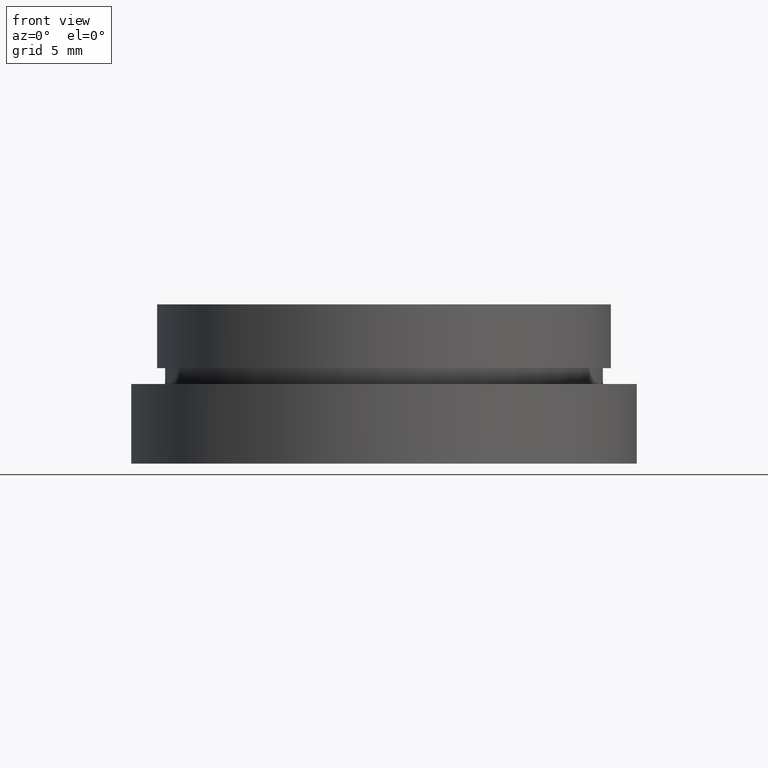
[diagram: clean part render]
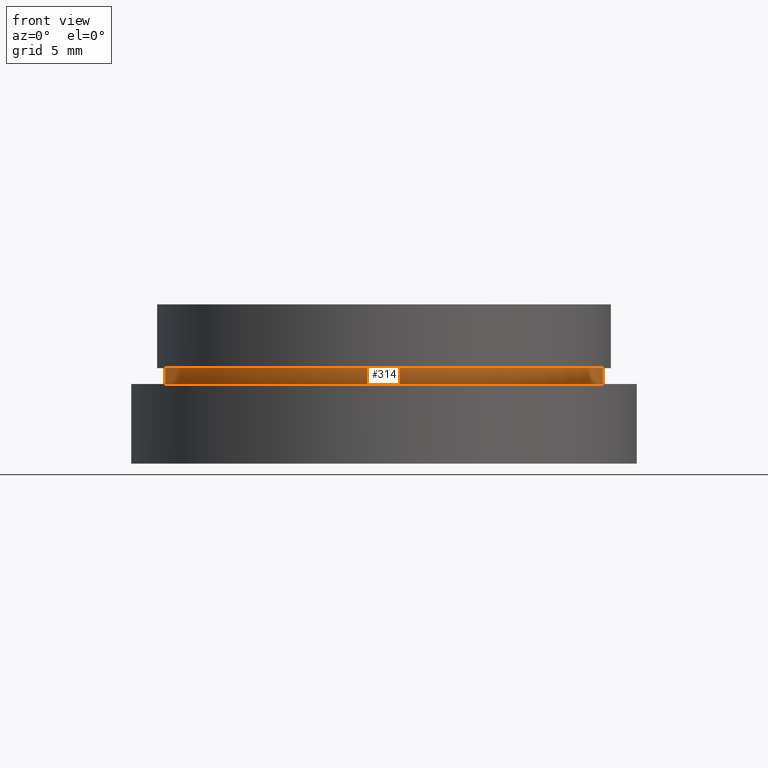
[diagram: same view with one face highlighted and labeled with its STEP entity id]
A machine part, front view. The second image highlights one B-rep face of the part: STEP entity #314.
In plain terms, the highlighted cylindrical surface (partial cylindrical patch) has radius 13.75 mm, axis along (-0, -0, -1).
Its self-contained STEP definition (entity closure, byte-faithful):
#26 = AXIS2_PLACEMENT_3D ( 'NONE', #414, #55, #387 ) ;
#45 = ORIENTED_EDGE ( 'NONE', *, *, #248, .T. ) ;
#55 = DIRECTION ( 'NONE',  ( -0.0000000000000000000, -0.0000000000000000000, -1.000000000000000000 ) ) ;
#68 = LINE ( 'NONE', #242, #125 ) ;
#70 = EDGE_CURVE ( 'NONE', #171, #423, #382, .T. ) ;
#93 = CYLINDRICAL_SURFACE ( 'NONE', #26, 13.75000000000000400 ) ;
#94 = VECTOR ( 'NONE', #165, 1000.000000000000000 ) ;
#95 = VERTEX_POINT ( 'NONE', #365 ) ;
#98 = EDGE_CURVE ( 'NONE', #119, #95, #68, .T. ) ;
#117 = CARTESIAN_POINT ( 'NONE',  ( 13.75000000000000400, 1.683889348827611200E-015, -4.000000000000000000 ) ) ;
#119 = VERTEX_POINT ( 'NONE', #383 ) ;
#125 = VECTOR ( 'NONE', #164, 1000.000000000000000 ) ;
#164 = DIRECTION ( 'NONE',  ( -0.0000000000000000000, -0.0000000000000000000, -1.000000000000000000 ) ) ;
#165 = DIRECTION ( 'NONE',  ( -0.0000000000000000000, -0.0000000000000000000, -1.000000000000000000 ) ) ;
#171 = VERTEX_POINT ( 'NONE', #117 ) ;
#214 = CIRCLE ( 'NONE', #359, 13.75000000000000400 ) ;
#236 = ORIENTED_EDGE ( 'NONE', *, *, #98, .T. ) ;
#239 = DIRECTION ( 'NONE',  ( -0.0000000000000000000, -0.0000000000000000000, -1.000000000000000000 ) ) ;
#242 = CARTESIAN_POINT ( 'NONE',  ( -13.75000000000000400, 0.0000000000000000000, -19.14057971014493000 ) ) ;
#248 = EDGE_CURVE ( 'NONE', #171, #119, #214, .T. ) ;
#281 = AXIS2_PLACEMENT_3D ( 'NONE', #282, #426, #351 ) ;
#282 = CARTESIAN_POINT ( 'NONE',  ( 0.0000000000000000000, 0.0000000000000000000, -5.000000000000000900 ) ) ;
#292 = EDGE_CURVE ( 'NONE', #423, #95, #407, .T. ) ;
#309 = DIRECTION ( 'NONE',  ( -1.000000000000000000, 0.0000000000000000000, 0.0000000000000000000 ) ) ;
#314 = ADVANCED_FACE ( 'NONE', ( #358 ), #93, .T. ) ;
#318 = ORIENTED_EDGE ( 'NONE', *, *, #292, .F. ) ;
#324 = EDGE_LOOP ( 'NONE', ( #412, #45, #236, #318 ) ) ;
#351 = DIRECTION ( 'NONE',  ( -1.000000000000000000, 0.0000000000000000000, 0.0000000000000000000 ) ) ;
#358 = FACE_OUTER_BOUND ( 'NONE', #324, .T. ) ;
#359 = AXIS2_PLACEMENT_3D ( 'NONE', #415, #239, #309 ) ;
#365 = CARTESIAN_POINT ( 'NONE',  ( -13.75000000000000400, 0.0000000000000000000, -5.000000000000000900 ) ) ;
#382 = LINE ( 'NONE', #397, #94 ) ;
#383 = CARTESIAN_POINT ( 'NONE',  ( -13.75000000000000400, 0.0000000000000000000, -4.000000000000000000 ) ) ;
#387 = DIRECTION ( 'NONE',  ( -1.000000000000000000, 0.0000000000000000000, 0.0000000000000000000 ) ) ;
#397 = CARTESIAN_POINT ( 'NONE',  ( 13.75000000000000400, 1.683889348827611200E-015, -19.14057971014493000 ) ) ;
#407 = CIRCLE ( 'NONE', #281, 13.75000000000000400 ) ;
#412 = ORIENTED_EDGE ( 'NONE', *, *, #70, .F. ) ;
#413 = CARTESIAN_POINT ( 'NONE',  ( 13.75000000000000400, 1.683889348827611200E-015, -5.000000000000000900 ) ) ;
#414 = CARTESIAN_POINT ( 'NONE',  ( 0.0000000000000000000, 0.0000000000000000000, -19.14057971014493000 ) ) ;
#415 = CARTESIAN_POINT ( 'NONE',  ( 0.0000000000000000000, 0.0000000000000000000, -4.000000000000000000 ) ) ;
#423 = VERTEX_POINT ( 'NONE', #413 ) ;
#426 = DIRECTION ( 'NONE',  ( -0.0000000000000000000, -0.0000000000000000000, -1.000000000000000000 ) ) ;